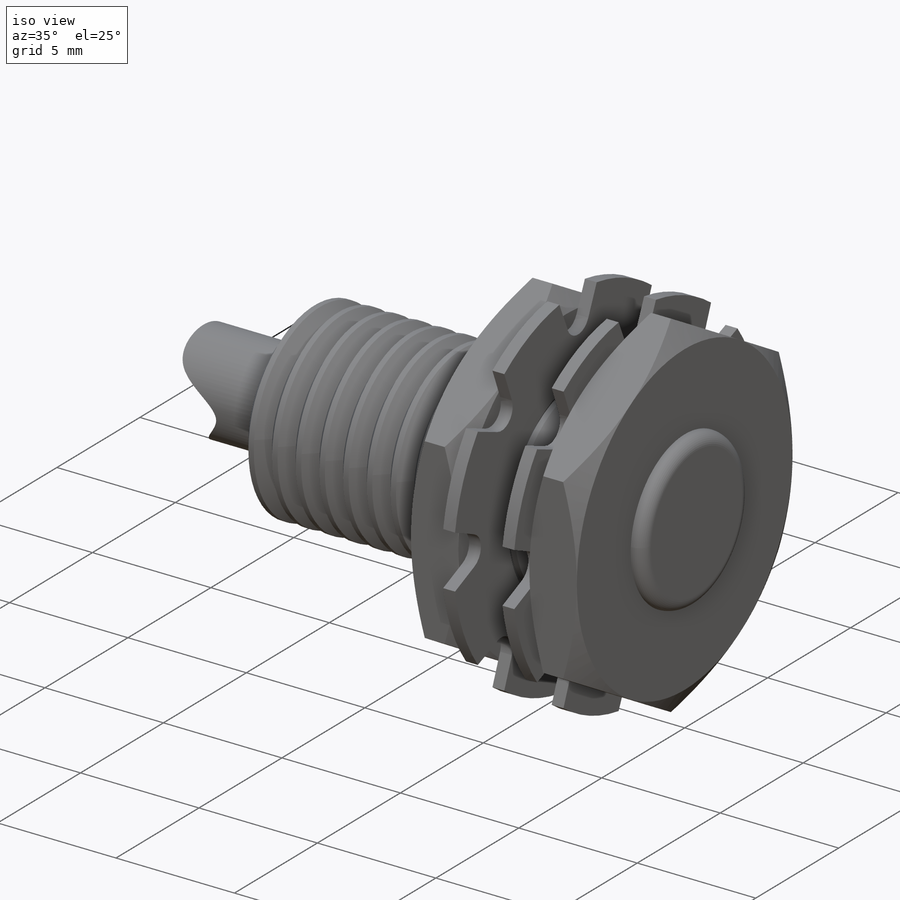
[diagram: iso view]
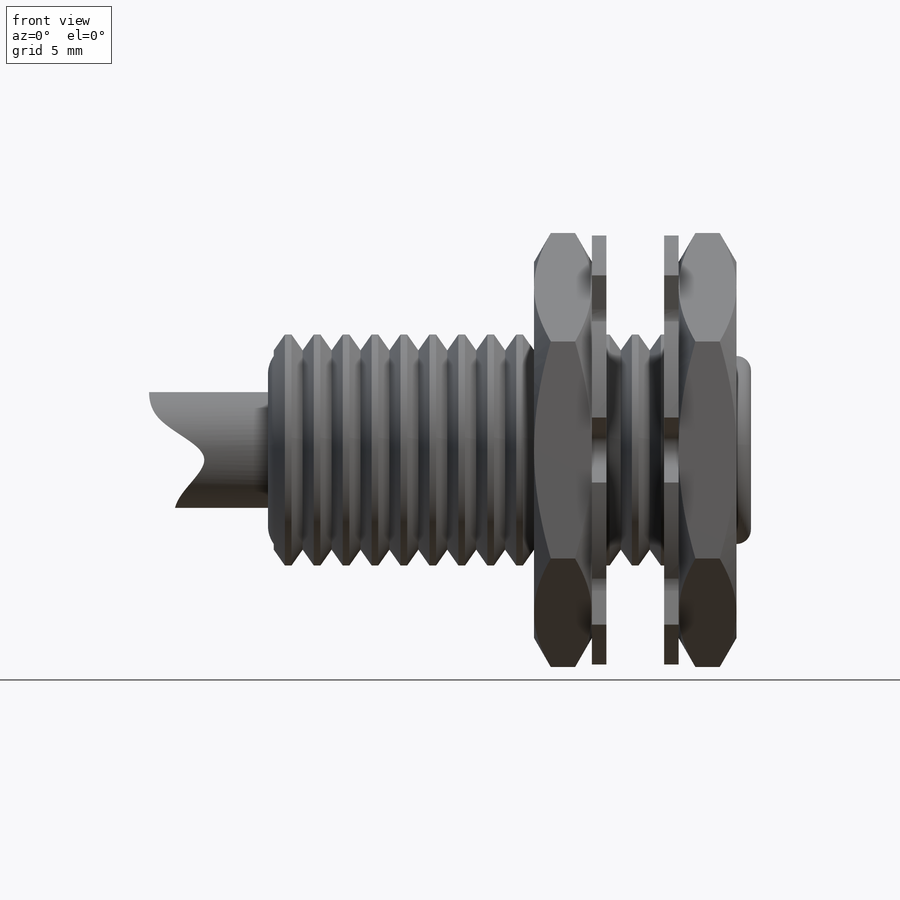
[diagram: front view]
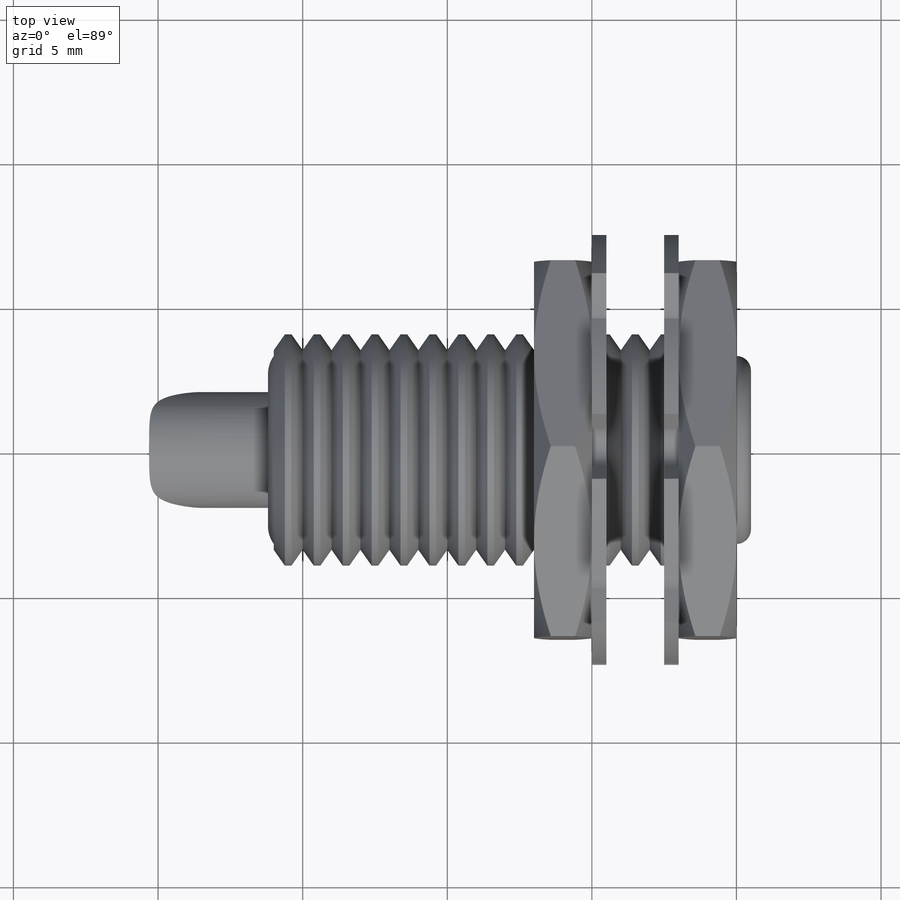
[diagram: top view]
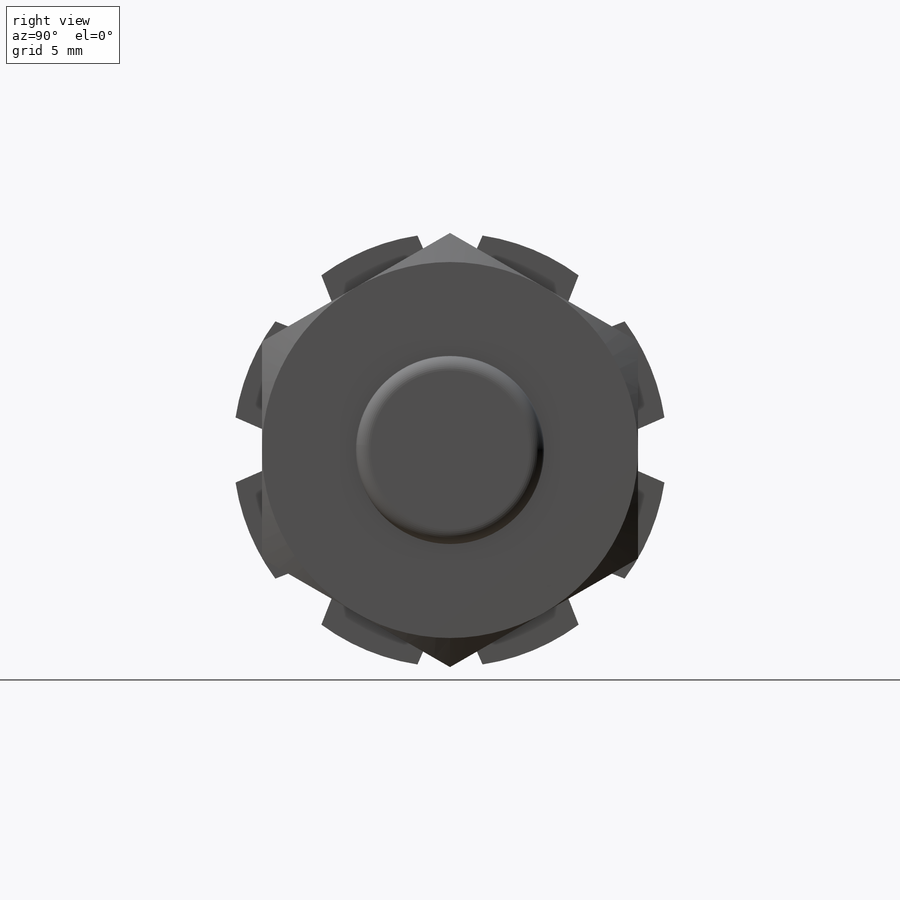
[diagram: right view]
SOLIDWORKS PART (.sldprt)
format: sldprt  version: not decoded by parser v0  size: 743,424 bytes
history: native  units: mm
features: extrude x10, sketch x9, plane x3, revolve x2, cut_extrude x2, material x1, cut_revolve x1, pattern_linear x1, pattern_circular x1, move_body x1, delete_body x1 + 5 further entries (+11 scaffold rows collapsed; 3 parser-record rows omitted)
feature tree (51):
  scaffold x11  (default folders/planes/origin — collapsed)
  material  "Сталь 10кп ГОСТ 535-88"
  plane  "Спереди"
  plane  "Сверху"
  plane  "Слева"
  "Начало координат"
  "PTricksFreeParameters"
  "PTricksEqu"
  "PTricksFreeParameters"
  parser-record x3  (decoder bookkeeping rows leaked as tree rows — omitted from the tree; the rows remain in map.json)
  sketch  "Эскиз1"  dims[D1=8.0mm]
  extrude  "Вытянуть1"  Depth=16mm
  sketch  "Эскиз2"  dims[c1.D1=6.9mm c1.D2=10.0mm c1.D3=~0.526729mm c2.D3=70.0deg c2.D4=1.0mm]
  cut_revolve  "Вырез-Повернуть1"  Angle=360deg
  pattern_linear  "Линейный массив1"  Count1=17 Count2=1 Spacing1=1mm Spacing2=10mm
  sketch  "Эскиз3"  dims[c1.D1=15.01mm c1.D2=13.0mm c1.D3=3.05mm c2.D3=30.0deg c2.D4=1.5mm]
  revolve  "Повернуть1"  [1 undecoded]
  extrude  "Гайка[1]"  [1 undecoded]
  extrude  "Гайка[2]"  [1 undecoded]
  sketch  "Эскиз4"  dims[D1=13.0mm]
  cut_extrude  "Вытянуть2"  [1 undecoded]
  sketch  "Эскиз5"  dims[D1=0.5mm D2=0.5mm D3=6.5mm D4=4.0mm D5=0.2mm]
  revolve  "Повернуть2"  [1 undecoded]
  extrude  "Датчик"  [1 undecoded]
  extrude  "LED"  [1 undecoded]
  sketch  "Эскиз6"  dims[D1=8.4mm D2=15.0mm]
  extrude  "Вытянуть3"  [1 undecoded]
  extrude  "Шайба[1]"  Depth=0.5mm
  sketch  "Эскиз7"  dims[D1=11.7mm D2=1.35mm D3=2.25mm]
  cut_extrude  "Вытянуть4"  [1 undecoded]
  pattern_circular  "Круговой массив1"  Count=8 Angle=45deg
  move_body  "Тело-Переместить/Копировать1"
  extrude  "Шайба[2]"  [1 undecoded]
  sketch  "Эскиз8"  dims[D1=4.0mm]
  "Поверхность-Вытянуть1"
  sketch  "Эскиз9"  dims[D1=4.0mm]
  extrude  "Вытянуть5"  [1 undecoded]
  extrude  "Провод"  [1 undecoded]
  delete_body  "Тело-Удалить1"
decode coverage: 14 of 28 modeling features carry decoded parameters; 5 rows unclassified (native names shown)
note: ~ marks probable driven/reference dimensions
note: 12 parameter values undecoded
summary: no parameter record found for 12 features
note: suppression state not decoded; provenance and decode notes live in map.json
